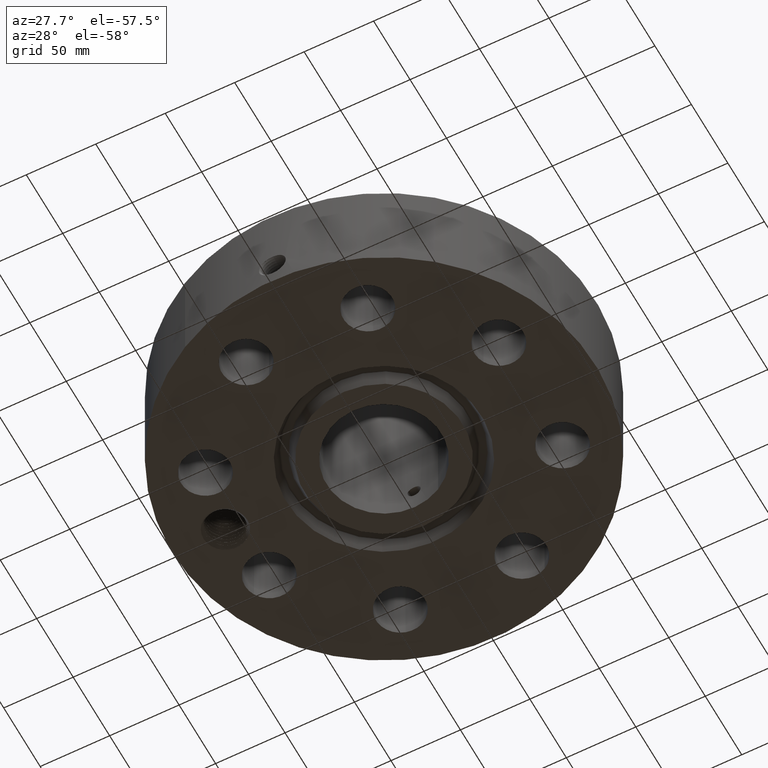
[diagram: clean part render]
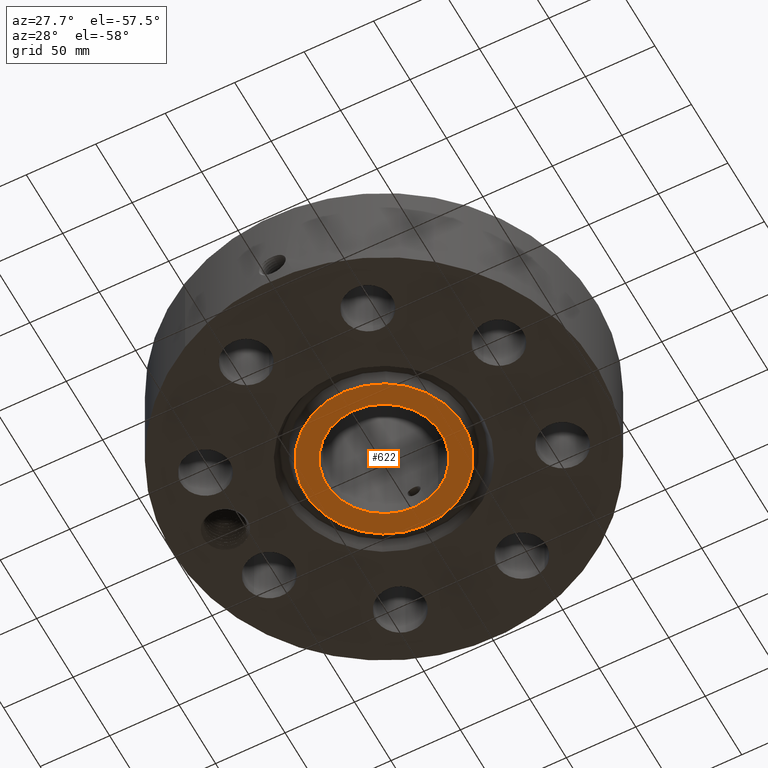
[diagram: same view with one face highlighted and labeled with its STEP entity id]
A machine part, auxiliary view. The second image highlights one B-rep face of the part: STEP entity #622.
In plain terms, the highlighted planar face has unit normal (0, 0, -1).
Its self-contained STEP definition (entity closure, byte-faithful):
#252=AXIS2_PLACEMENT_3D('Circle Axis2P3D',#250,#251,$) ;
#543=AXIS2_PLACEMENT_3D('Circle Axis2P3D',#541,#542,$) ;
#598=AXIS2_PLACEMENT_3D('Plane Axis2P3D',#595,#596,#597) ;
#602=AXIS2_PLACEMENT_3D('Circle Axis2P3D',#600,#601,$) ;
#611=AXIS2_PLACEMENT_3D('Circle Axis2P3D',#609,#610,$) ;
#247=CARTESIAN_POINT('Vertex',(0.781463627928,1.43045957589,-7.83275456743E-015)) ;
#250=CARTESIAN_POINT('Axis2P3D Location',(0.,0.,-7.83275456743E-015)) ;
#254=CARTESIAN_POINT('Vertex',(-0.781463627928,-1.43045957589,-7.83275456743E-015)) ;
#541=CARTESIAN_POINT('Axis2P3D Location',(0.,0.,-7.83275456743E-015)) ;
#595=CARTESIAN_POINT('Axis2P3D Location',(0.,1.63000000001,0.)) ;
#600=CARTESIAN_POINT('Axis2P3D Location',(1.1189649382E-015,-2.79741234551E-016,0.)) ;
#604=CARTESIAN_POINT('Vertex',(-1.07127636602,1.96095823455,6.99353086378E-017)) ;
#606=CARTESIAN_POINT('Vertex',(1.07127636602,-1.96095823455,0.)) ;
#609=CARTESIAN_POINT('Axis2P3D Location',(2.79741234551E-016,0.,0.)) ;
#251=DIRECTION('Axis2P3D Direction',(0.,0.,-0.0393700787402)) ;
#542=DIRECTION('Axis2P3D Direction',(0.,0.,-0.0393700787402)) ;
#596=DIRECTION('Axis2P3D Direction',(0.,0.,-0.0393700787402)) ;
#597=DIRECTION('Axis2P3D XDirection',(0.0393700787402,0.,0.)) ;
#601=DIRECTION('Axis2P3D Direction',(0.,0.,-0.0393700787402)) ;
#610=DIRECTION('Axis2P3D Direction',(0.,0.,-0.0393700787402)) ;
#615=ORIENTED_EDGE('',*,*,#608,.T.) ;
#616=ORIENTED_EDGE('',*,*,#613,.T.) ;
#619=ORIENTED_EDGE('',*,*,#256,.F.) ;
#620=ORIENTED_EDGE('',*,*,#545,.F.) ;
#621=FACE_BOUND('',#618,.T.) ;
#622=ADVANCED_FACE('PartBody',(#617,#621),#599,.T.) ;
#253=CIRCLE('generated circle',#252,1.63000000001) ;
#544=CIRCLE('generated circle',#543,1.63000000001) ;
#603=CIRCLE('generated circle',#602,2.23450000001) ;
#612=CIRCLE('generated circle',#611,2.23450000001) ;
#256=EDGE_CURVE('',#248,#255,#253,.T.) ;
#545=EDGE_CURVE('',#255,#248,#544,.T.) ;
#608=EDGE_CURVE('',#605,#607,#603,.T.) ;
#613=EDGE_CURVE('',#607,#605,#612,.T.) ;
#614=EDGE_LOOP('',(#615,#616)) ;
#618=EDGE_LOOP('',(#619,#620)) ;
#617=FACE_OUTER_BOUND('',#614,.T.) ;
#599=PLANE('',#598) ;
#248=VERTEX_POINT('',#247) ;
#255=VERTEX_POINT('',#254) ;
#605=VERTEX_POINT('',#604) ;
#607=VERTEX_POINT('',#606) ;